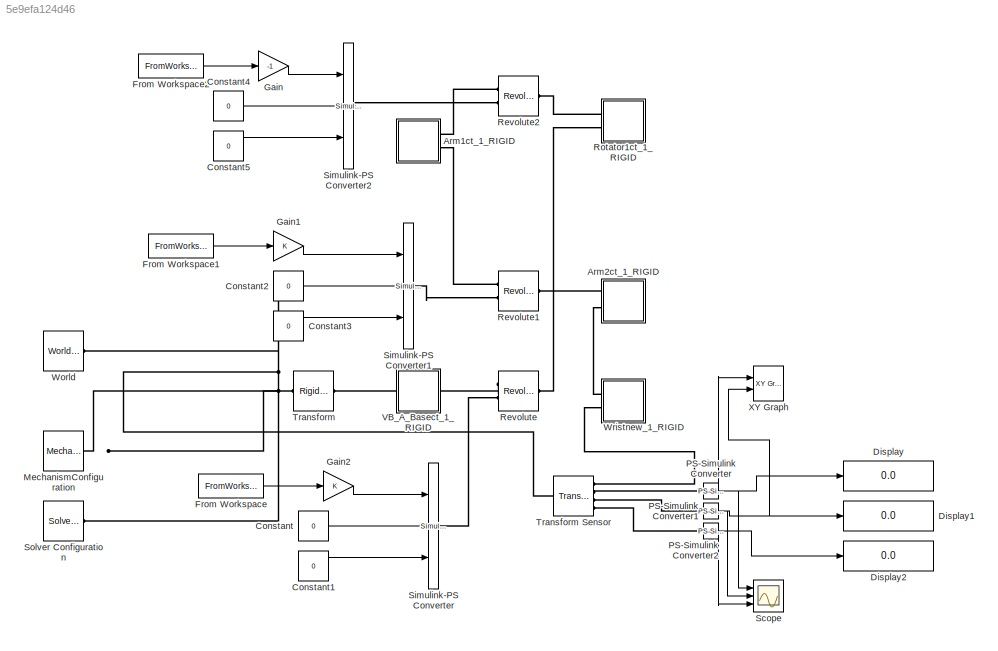
MODEL slx_5e9efa124d46
KIND model
CONFIG AbsTol = auto
CONFIG FixedStep = auto
CONFIG MaxStep = auto
CONFIG MinStep = auto
CONFIG RelTol = 1e-3
CONFIG SampleTimeConstraint = Unconstrained
CONFIG Solver = VariableStepAuto
CONFIG SolverMode = SingleTasking
CONFIG SolverName = VariableStepAuto
CONFIG StartTime = 0.0
CONFIG StopTime = 170
WORKSPACE source: external: MATLAB File  (data not in archive)
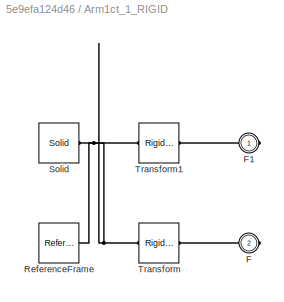
BLOCK [SubSystem] Arm1ct_1_RIGID
  Ports = [0, 0, 0, 0, 0, 0, 2]
  RequestExecContextInheritance = off
BLOCK [PMIOPort] Arm1ct_1_RIGID/F
  Port = 2
  Side = Right
BLOCK [PMIOPort] Arm1ct_1_RIGID/F1
  Side = Right
BLOCK [Reference] Arm1ct_1_RIGID/ReferenceFrame  REF=sm_lib/Frames and
Transforms/Reference
Frame
  Ports = [0, 0, 0, 0, 0, 0, 1]
  SourceBlock = sm_lib/Frames and\nTransforms/Reference\nFrame
  SourceType = Reference\nFrame
BLOCK [Reference] Arm1ct_1_RIGID/Solid  REF=sm_lib/Body Elements/Solid
  Ports = [0, 0, 0, 0, 0, 0, 1]
  SourceBlock = sm_lib/Body Elements/Solid
  SourceType = Solid
BLOCK [Reference] Arm1ct_1_RIGID/Transform  REF=sm_lib/Frames and
Transforms/Rigid
Transform
  Ports = [0, 0, 0, 0, 0, 1, 1]
  SourceBlock = sm_lib/Frames and\nTransforms/Rigid\nTransform
  SourceType = Rigid\nTransform
BLOCK [Reference] Arm1ct_1_RIGID/Transform1  REF=sm_lib/Frames and
Transforms/Rigid
Transform
  Ports = [0, 0, 0, 0, 0, 1, 1]
  SourceBlock = sm_lib/Frames and\nTransforms/Rigid\nTransform
  SourceType = Rigid\nTransform
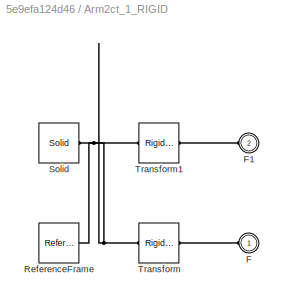
BLOCK [SubSystem] Arm2ct_1_RIGID
  Ports = [0, 0, 0, 0, 0, 2]
  RequestExecContextInheritance = off
BLOCK [PMIOPort] Arm2ct_1_RIGID/F
  Side = Left
BLOCK [PMIOPort] Arm2ct_1_RIGID/F1
  Port = 2
  Side = Left
BLOCK [Reference] Arm2ct_1_RIGID/ReferenceFrame  REF=sm_lib/Frames and
Transforms/Reference
Frame
  Ports = [0, 0, 0, 0, 0, 0, 1]
  SourceBlock = sm_lib/Frames and\nTransforms/Reference\nFrame
  SourceType = Reference\nFrame
BLOCK [Reference] Arm2ct_1_RIGID/Solid  REF=sm_lib/Body Elements/Solid
  Ports = [0, 0, 0, 0, 0, 0, 1]
  SourceBlock = sm_lib/Body Elements/Solid
  SourceType = Solid
BLOCK [Reference] Arm2ct_1_RIGID/Transform  REF=sm_lib/Frames and
Transforms/Rigid
Transform
  Ports = [0, 0, 0, 0, 0, 1, 1]
  SourceBlock = sm_lib/Frames and\nTransforms/Rigid\nTransform
  SourceType = Rigid\nTransform
BLOCK [Reference] Arm2ct_1_RIGID/Transform1  REF=sm_lib/Frames and
Transforms/Rigid
Transform
  Ports = [0, 0, 0, 0, 0, 1, 1]
  SourceBlock = sm_lib/Frames and\nTransforms/Rigid\nTransform
  SourceType = Rigid\nTransform
BLOCK [Constant] Constant
  Value = 0
BLOCK [Constant] Constant1
  Value = 0
BLOCK [Constant] Constant2
  Value = 0
BLOCK [Constant] Constant3
  Value = 0
BLOCK [Constant] Constant4
  Value = 0
BLOCK [Constant] Constant5
  Value = 0
BLOCK [Display] Display
  Decimation = 1
  Ports = [1]
BLOCK [Display] Display1
  Decimation = 1
  Ports = [1]
BLOCK [Display] Display2
  Decimation = 1
  Ports = [1]
BLOCK [FromWorkspace] From Workspace
  OutputAfterFinalValue = Holding final value
  SampleTime = 0
  VariableName = theta1
  ZeroCross = on
BLOCK [FromWorkspace] From Workspace1
  OutputAfterFinalValue = Holding final value
  SampleTime = 0
  VariableName = theta3-[0 pi/2]
  ZeroCross = on
BLOCK [FromWorkspace] From Workspace2
  OutputAfterFinalValue = Holding final value
  SampleTime = 0
  VariableName = theta2
  ZeroCross = on
BLOCK [Gain] Gain
  Gain = -1
  OutDataTypeStr = Inherit: Inherit via internal rule
  ParamDataTypeStr = Inherit: Inherit via internal rule
  SaturateOnIntegerOverflow = off
BLOCK [Gain] Gain1
  OutDataTypeStr = Inherit: Inherit via internal rule
  ParamDataTypeStr = Inherit: Inherit via internal rule
  SaturateOnIntegerOverflow = off
BLOCK [Gain] Gain2
  OutDataTypeStr = Inherit: Inherit via internal rule
  ParamDataTypeStr = Inherit: Inherit via internal rule
  SaturateOnIntegerOverflow = off
BLOCK [Reference] MechanismConfiguration  REF=sm_lib/Utilities/Mechanism
Configuration
  Ports = [0, 0, 0, 0, 0, 0, 1]
  SourceBlock = sm_lib/Utilities/Mechanism\nConfiguration
  SourceType = Mechanism\nConfiguration
BLOCK [Reference] PS-Simulink Converter  REF=nesl_utility/PS-Simulink
Converter
  Ports = [0, 1, 0, 0, 0, 1]
  SourceBlock = nesl_utility/PS-Simulink\nConverter
  SourceType = PS-Simulink\nConverter
BLOCK [Reference] PS-Simulink Converter1  REF=nesl_utility/PS-Simulink
Converter
  Ports = [0, 1, 0, 0, 0, 1]
  SourceBlock = nesl_utility/PS-Simulink\nConverter
  SourceType = PS-Simulink\nConverter
BLOCK [Reference] PS-Simulink Converter2  REF=nesl_utility/PS-Simulink
Converter
  Ports = [0, 1, 0, 0, 0, 1]
  SourceBlock = nesl_utility/PS-Simulink\nConverter
  SourceType = PS-Simulink\nConverter
BLOCK [Reference] Revolute  REF=sm_lib/Joints/Revolute Joint
  Ports = [0, 0, 0, 0, 0, 2, 1]
  SourceBlock = sm_lib/Joints/Revolute Joint
  SourceType = Revolute Joint
BLOCK [Reference] Revolute1  REF=sm_lib/Joints/Revolute Joint
  Ports = [0, 0, 0, 0, 0, 2, 1]
  SourceBlock = sm_lib/Joints/Revolute Joint
  SourceType = Revolute Joint
BLOCK [Reference] Revolute2  REF=sm_lib/Joints/Revolute Joint
  Ports = [0, 0, 0, 0, 0, 2, 1]
  SourceBlock = sm_lib/Joints/Revolute Joint
  SourceType = Revolute Joint
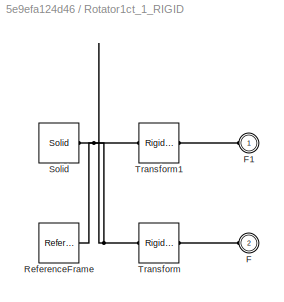
BLOCK [SubSystem] Rotator1ct_1_RIGID
  Ports = [0, 0, 0, 0, 0, 2]
  RequestExecContextInheritance = off
BLOCK [PMIOPort] Rotator1ct_1_RIGID/F
  Port = 2
  Side = Left
BLOCK [PMIOPort] Rotator1ct_1_RIGID/F1
  Side = Left
BLOCK [Reference] Rotator1ct_1_RIGID/ReferenceFrame  REF=sm_lib/Frames and
Transforms/Reference
Frame
  Ports = [0, 0, 0, 0, 0, 0, 1]
  SourceBlock = sm_lib/Frames and\nTransforms/Reference\nFrame
  SourceType = Reference\nFrame
BLOCK [Reference] Rotator1ct_1_RIGID/Solid  REF=sm_lib/Body Elements/Solid
  Ports = [0, 0, 0, 0, 0, 0, 1]
  SourceBlock = sm_lib/Body Elements/Solid
  SourceType = Solid
BLOCK [Reference] Rotator1ct_1_RIGID/Transform  REF=sm_lib/Frames and
Transforms/Rigid
Transform
  Ports = [0, 0, 0, 0, 0, 1, 1]
  SourceBlock = sm_lib/Frames and\nTransforms/Rigid\nTransform
  SourceType = Rigid\nTransform
BLOCK [Reference] Rotator1ct_1_RIGID/Transform1  REF=sm_lib/Frames and
Transforms/Rigid
Transform
  Ports = [0, 0, 0, 0, 0, 1, 1]
  SourceBlock = sm_lib/Frames and\nTransforms/Rigid\nTransform
  SourceType = Rigid\nTransform
BLOCK [Scope] Scope
  Floating = off
  NumInputPorts = 3
  Ports = [3]
  ScopeSpecificationString = Simulink.scopes.TimeScopeBlockCfg('CurrentConfiguration', extmgr.ConfigurationSet(extmgr.Configuration('Core','General UI',true,'FigureColor',[1 1 1]),extmgr.Configuration('Core','Source UI',true),extmgr.Configuration('Sources','WiredSimulink',true),extmgr.Configuration('Visuals','Time Domain',true,'SerializedDisplays',{struct('MinYLimReal','0','MaxYLimReal','1.5','YLabelReal','','MinYLimMag','0.0...<+1589ch>
BLOCK [Reference] Simulink-PS Converter  REF=nesl_utility/Simulink-PS
Converter
  Ports = [3, 0, 0, 0, 0, 0, 1]
  SourceBlock = nesl_utility/Simulink-PS\nConverter
  SourceType = Simulink-PS\nConverter
BLOCK [Reference] Simulink-PS Converter1  REF=nesl_utility/Simulink-PS
Converter
  Ports = [3, 0, 0, 0, 0, 0, 1]
  SourceBlock = nesl_utility/Simulink-PS\nConverter
  SourceType = Simulink-PS\nConverter
BLOCK [Reference] Simulink-PS Converter2  REF=nesl_utility/Simulink-PS
Converter
  Ports = [3, 0, 0, 0, 0, 0, 1]
  SourceBlock = nesl_utility/Simulink-PS\nConverter
  SourceType = Simulink-PS\nConverter
BLOCK [Reference] Solver Configuration  REF=nesl_utility/Solver
Configuration
  Ports = [0, 0, 0, 0, 0, 0, 1]
  SourceBlock = nesl_utility/Solver\nConfiguration
  SourceType = Solver\nConfiguration
BLOCK [Reference] Transform  REF=sm_lib/Frames and
Transforms/Rigid
Transform
  Ports = [0, 0, 0, 0, 0, 1, 1]
  SourceBlock = sm_lib/Frames and\nTransforms/Rigid\nTransform
  SourceType = Rigid\nTransform
BLOCK [Reference] Transform Sensor  REF=sm_lib/Frames and
Transforms/Transform
Sensor
  Ports = [0, 0, 0, 0, 0, 1, 4]
  SourceBlock = sm_lib/Frames and\nTransforms/Transform\nSensor
  SourceType = Transform\nSensor
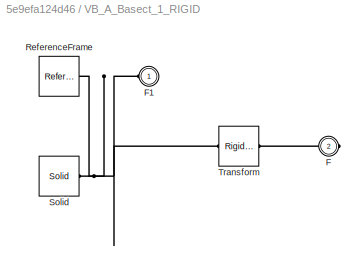
BLOCK [SubSystem] VB_A_Basect_1_RIGID
  Ports = [0, 0, 0, 0, 0, 1, 1]
  RequestExecContextInheritance = off
BLOCK [PMIOPort] VB_A_Basect_1_RIGID/F
  Port = 2
  Side = Right
BLOCK [PMIOPort] VB_A_Basect_1_RIGID/F1
  Side = Left
BLOCK [Reference] VB_A_Basect_1_RIGID/ReferenceFrame  REF=sm_lib/Frames and
Transforms/Reference
Frame
  Ports = [0, 0, 0, 0, 0, 0, 1]
  SourceBlock = sm_lib/Frames and\nTransforms/Reference\nFrame
  SourceType = Reference\nFrame
BLOCK [Reference] VB_A_Basect_1_RIGID/Solid  REF=sm_lib/Body Elements/Solid
  Ports = [0, 0, 0, 0, 0, 0, 1]
  SourceBlock = sm_lib/Body Elements/Solid
  SourceType = Solid
BLOCK [Reference] VB_A_Basect_1_RIGID/Transform  REF=sm_lib/Frames and
Transforms/Rigid
Transform
  Ports = [0, 0, 0, 0, 0, 1, 1]
  SourceBlock = sm_lib/Frames and\nTransforms/Rigid\nTransform
  SourceType = Rigid\nTransform
BLOCK [Reference] World  REF=sm_lib/Frames and
Transforms/World Frame
  Ports = [0, 0, 0, 0, 0, 0, 1]
  SourceBlock = sm_lib/Frames and\nTransforms/World Frame
  SourceType = World Frame
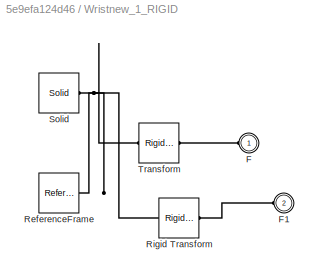
BLOCK [SubSystem] Wristnew_1_RIGID
  Ports = [0, 0, 0, 0, 0, 2]
  RequestExecContextInheritance = off
BLOCK [PMIOPort] Wristnew_1_RIGID/F
  Side = Left
BLOCK [PMIOPort] Wristnew_1_RIGID/F1
  Port = 2
  Side = Left
BLOCK [Reference] Wristnew_1_RIGID/ReferenceFrame  REF=sm_lib/Frames and
Transforms/Reference
Frame
  Ports = [0, 0, 0, 0, 0, 0, 1]
  SourceBlock = sm_lib/Frames and\nTransforms/Reference\nFrame
  SourceType = Reference\nFrame
BLOCK [Reference] Wristnew_1_RIGID/Rigid Transform  REF=sm_lib/Frames and
Transforms/Rigid
Transform
  Ports = [0, 0, 0, 0, 0, 1, 1]
  SourceBlock = sm_lib/Frames and\nTransforms/Rigid\nTransform
  SourceType = Rigid\nTransform
BLOCK [Reference] Wristnew_1_RIGID/Solid  REF=sm_lib/Body Elements/Solid
  Ports = [0, 0, 0, 0, 0, 0, 1]
  SourceBlock = sm_lib/Body Elements/Solid
  SourceType = Solid
BLOCK [Reference] Wristnew_1_RIGID/Transform  REF=sm_lib/Frames and
Transforms/Rigid
Transform
  Ports = [0, 0, 0, 0, 0, 1, 1]
  SourceBlock = sm_lib/Frames and\nTransforms/Rigid\nTransform
  SourceType = Rigid\nTransform
BLOCK [Reference] XY Graph  REF=simulink/Sinks/XY Graph
  Ports = [2]
  SourceBlock = simulink/Sinks/XY Graph
  SourceType = XY scope.
LINE Constant1:1 -> Simulink-PS Converter:3
LINE Constant2:1 -> Simulink-PS Converter1:2
LINE Constant3:1 -> Simulink-PS Converter1:3
LINE Constant4:1 -> Simulink-PS Converter2:2
LINE Constant5:1 -> Simulink-PS Converter2:3
LINE Constant:1 -> Simulink-PS Converter:2
LINE From Workspace1:1 -> Gain1:1
LINE From Workspace2:1 -> Gain:1
LINE From Workspace:1 -> Gain2:1
LINE Gain1:1 -> Simulink-PS Converter1:1
LINE Gain2:1 -> Simulink-PS Converter:1
LINE Gain:1 -> Simulink-PS Converter2:1
NET PS-Simulink Converter1:1 -> Display1:1, Scope:2, XY Graph:2
NET PS-Simulink Converter2:1 -> Display2:1, Scope:3
NET PS-Simulink Converter:1 -> Display:1, Scope:1, XY Graph:1
PLINE Arm1ct_1_RIGID/F1:RConn1 -- Arm1ct_1_RIGID/Transform1:RConn1
PLINE Arm1ct_1_RIGID/F:RConn1 -- Arm1ct_1_RIGID/Transform:RConn1
PNET net1: Arm1ct_1_RIGID/ReferenceFrame:RConn1 -- Arm1ct_1_RIGID/Solid:RConn1 -- Arm1ct_1_RIGID/Transform1:LConn1 -- Arm1ct_1_RIGID/Transform:LConn1
PLINE Arm1ct_1_RIGID:RConn1 -- Revolute2:LConn1
PLINE Arm1ct_1_RIGID:RConn2 -- Revolute1:LConn1
PLINE Arm2ct_1_RIGID/F1:RConn1 -- Arm2ct_1_RIGID/Transform1:RConn1
PLINE Arm2ct_1_RIGID/F:RConn1 -- Arm2ct_1_RIGID/Transform:RConn1
PNET net2: Arm2ct_1_RIGID/ReferenceFrame:RConn1 -- Arm2ct_1_RIGID/Solid:RConn1 -- Arm2ct_1_RIGID/Transform1:LConn1 -- Arm2ct_1_RIGID/Transform:LConn1
PLINE Arm2ct_1_RIGID:LConn1 -- Revolute1:RConn1
PLINE Arm2ct_1_RIGID:LConn2 -- Wristnew_1_RIGID:LConn1
PNET net3: MechanismConfiguration:RConn1 -- Solver Configuration:RConn1 -- Transform Sensor:LConn1 -- Transform:LConn1 -- World:RConn1
PLINE PS-Simulink Converter1:LConn1 -- Transform Sensor:RConn3
PLINE PS-Simulink Converter2:LConn1 -- Transform Sensor:RConn4
PLINE PS-Simulink Converter:LConn1 -- Transform Sensor:RConn2
PLINE Revolute1:LConn2 -- Simulink-PS Converter1:RConn1
PLINE Revolute2:LConn2 -- Simulink-PS Converter2:RConn1
PLINE Revolute2:RConn1 -- Rotator1ct_1_RIGID:LConn1
PLINE Revolute:LConn1 -- VB_A_Basect_1_RIGID:RConn1
PLINE Revolute:LConn2 -- Simulink-PS Converter:RConn1
PLINE Revolute:RConn1 -- Rotator1ct_1_RIGID:LConn2
PLINE Rotator1ct_1_RIGID/F1:RConn1 -- Rotator1ct_1_RIGID/Transform1:RConn1
PLINE Rotator1ct_1_RIGID/F:RConn1 -- Rotator1ct_1_RIGID/Transform:RConn1
PNET net4: Rotator1ct_1_RIGID/ReferenceFrame:RConn1 -- Rotator1ct_1_RIGID/Solid:RConn1 -- Rotator1ct_1_RIGID/Transform1:LConn1 -- Rotator1ct_1_RIGID/Transform:LConn1
PLINE Transform Sensor:RConn1 -- Wristnew_1_RIGID:LConn2
PLINE Transform:RConn1 -- VB_A_Basect_1_RIGID:LConn1
PNET net5: VB_A_Basect_1_RIGID/F1:RConn1 -- VB_A_Basect_1_RIGID/ReferenceFrame:RConn1 -- VB_A_Basect_1_RIGID/Solid:RConn1 -- VB_A_Basect_1_RIGID/Transform:LConn1
PLINE VB_A_Basect_1_RIGID/F:RConn1 -- VB_A_Basect_1_RIGID/Transform:RConn1
PLINE Wristnew_1_RIGID/F1:RConn1 -- Wristnew_1_RIGID/Rigid Transform:RConn1
PLINE Wristnew_1_RIGID/F:RConn1 -- Wristnew_1_RIGID/Transform:RConn1
PNET net6: Wristnew_1_RIGID/ReferenceFrame:RConn1 -- Wristnew_1_RIGID/Rigid Transform:LConn1 -- Wristnew_1_RIGID/Solid:RConn1 -- Wristnew_1_RIGID/Transform:LConn1
note: NET lines group one-source signal fan-out (src -> all destinations, sorted); 1:1 wires keep LINE; PNET lines group multi-terminal physical nets as a canonical sorted terminal list (undirected conserving connections); 2-terminal nets keep the pairwise PLINE form
